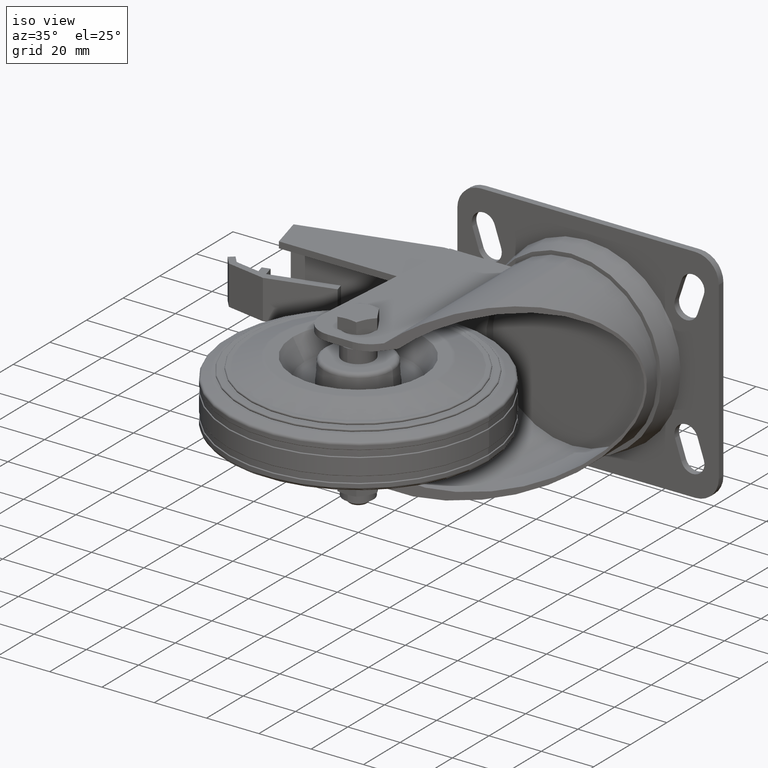
[diagram: clean part render]
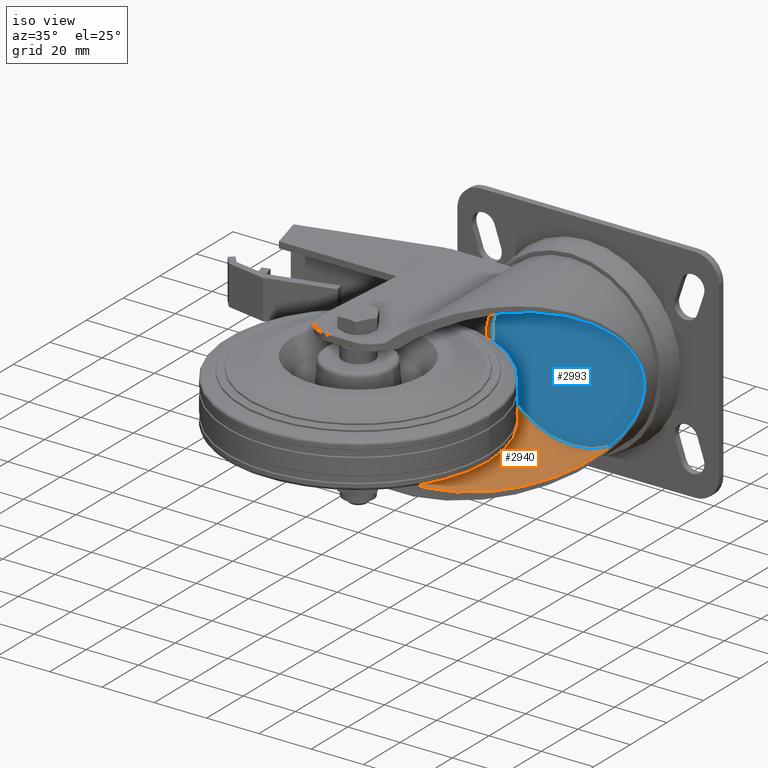
[diagram: same view with the hole feature highlighted: cylindrical wall and planar end face, labeled with their STEP entity ids]
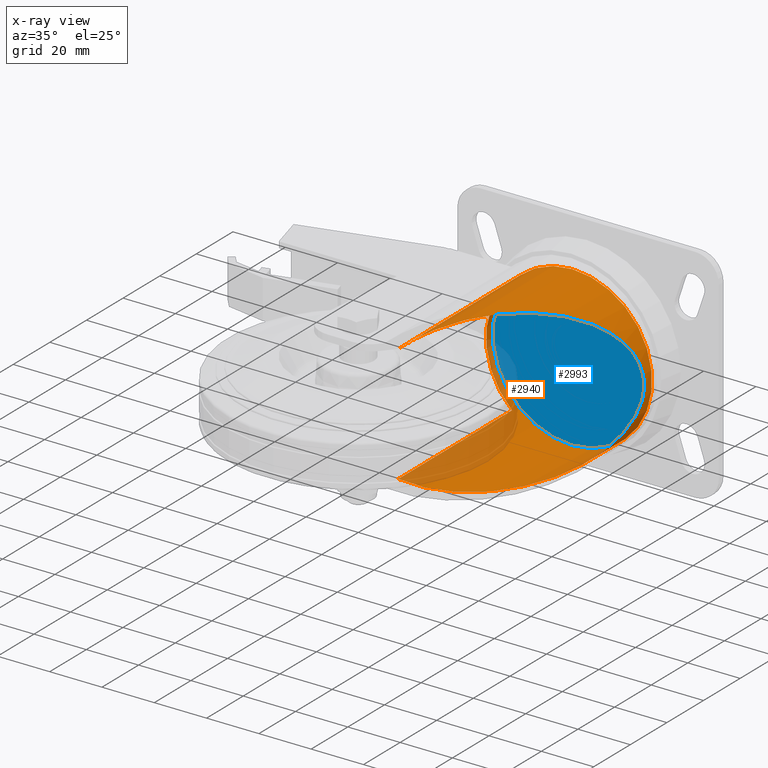
[diagram: x-ray of the same camera — body ghosted, the hole faces saturated]
A machine part, iso view. The highlighted faces form one hole feature of diameter 61 mm: the cylindrical wall (entity #2940, orange) and its adjacent planar end face (entity #2993, blue) — they share a circular edge in the B-rep.
The next image is the same camera in x-ray (body ghosted, the hole faces saturated) — the bore reads through the body.
Wall:
#50=ELLIPSE('',#3277,47.7101763165063,30.5);
#51=ELLIPSE('',#3278,47.7101763165063,30.5);
#285=LINE('',#4903,#479);
#286=LINE('',#4905,#480);
#287=LINE('',#4908,#481);
#479=VECTOR('',#3833,30.5);
#480=VECTOR('',#3834,1000.);
#481=VECTOR('',#3837,1000.);
#635=CYLINDRICAL_SURFACE('',#3289,30.5);
#721=FACE_OUTER_BOUND('',#915,.T.);
#915=EDGE_LOOP('',(#2251,#2252,#2253,#2254,#2255,#2256,#2257,#2258));
#1117=CIRCLE('',#3290,30.5);
#1118=CIRCLE('',#3291,30.5);
#1382=VERTEX_POINT('',#4868);
#1383=VERTEX_POINT('',#4870);
#1384=VERTEX_POINT('',#4872);
#1392=VERTEX_POINT('',#4901);
#1393=VERTEX_POINT('',#4904);
#1394=VERTEX_POINT('',#4906);
#1695=EDGE_CURVE('',#1382,#1383,#50,.F.);
#1696=EDGE_CURVE('',#1383,#1384,#51,.F.);
#1712=EDGE_CURVE('',#1392,#1392,#1117,.T.);
#1713=EDGE_CURVE('',#1392,#1383,#285,.T.);
#1714=EDGE_CURVE('',#1382,#1393,#286,.F.);
#1715=EDGE_CURVE('',#1393,#1394,#1118,.T.);
#1716=EDGE_CURVE('',#1394,#1384,#287,.T.);
#2251=ORIENTED_EDGE('',*,*,#1712,.F.);
#2252=ORIENTED_EDGE('',*,*,#1713,.T.);
#2253=ORIENTED_EDGE('',*,*,#1695,.F.);
#2254=ORIENTED_EDGE('',*,*,#1714,.T.);
#2255=ORIENTED_EDGE('',*,*,#1715,.T.);
#2256=ORIENTED_EDGE('',*,*,#1716,.T.);
#2257=ORIENTED_EDGE('',*,*,#1696,.F.);
#2258=ORIENTED_EDGE('',*,*,#1713,.F.);
#2940=ADVANCED_FACE('',(#721),#635,.F.);
#3277=AXIS2_PLACEMENT_3D('',#4871,#3796,#3797);
#3278=AXIS2_PLACEMENT_3D('',#4873,#3798,#3799);
#3289=AXIS2_PLACEMENT_3D('',#4900,#3829,#3830);
#3290=AXIS2_PLACEMENT_3D('',#4902,#3831,#3832);
#3291=AXIS2_PLACEMENT_3D('',#4907,#3835,#3836);
#3796=DIRECTION('center_axis',(0.768976859184235,-0.639276614650613,0.));
#3797=DIRECTION('ref_axis',(-0.639276614650613,-0.768976859184235,0.));
#3798=DIRECTION('center_axis',(0.768976859184235,-0.639276614650613,0.));
#3799=DIRECTION('ref_axis',(-0.639276614650613,-0.768976859184235,0.));
#3829=DIRECTION('center_axis',(0.,-1.,0.));
#3830=DIRECTION('ref_axis',(0.,0.,-1.));
#3831=DIRECTION('center_axis',(0.,-1.,0.));
#3832=DIRECTION('ref_axis',(0.,0.,-1.));
#3833=DIRECTION('',(0.,-1.,0.));
#3834=DIRECTION('',(0.,-1.,0.));
#3835=DIRECTION('center_axis',(0.,-1.,0.));
#3836=DIRECTION('ref_axis',(0.,0.,-1.));
#3837=DIRECTION('',(0.,-1.,0.));
#4868=CARTESIAN_POINT('',(16.408739718026,-1.55840223745891,22.5));
#4870=CARTESIAN_POINT('',(37.,23.2105354890234,30.5));
#4871=CARTESIAN_POINT('Origin',(37.,23.2105354890234,0.));
#4872=CARTESIAN_POINT('',(16.408739718026,-1.55840223745891,-22.5));
#4873=CARTESIAN_POINT('Origin',(37.,23.2105354890234,0.));
#4900=CARTESIAN_POINT('Origin',(37.,-10.,0.));
#4901=CARTESIAN_POINT('',(37.,64.,30.5));
#4902=CARTESIAN_POINT('Origin',(37.,64.,0.));
#4903=CARTESIAN_POINT('',(37.,-10.,30.5));
#4904=CARTESIAN_POINT('',(16.408739718026,60.5,22.5));
#4905=CARTESIAN_POINT('',(16.408739718026,-10.,22.5));
#4906=CARTESIAN_POINT('',(16.408739718026,60.5,-22.5));
#4907=CARTESIAN_POINT('Origin',(37.,60.5,0.));
#4908=CARTESIAN_POINT('',(16.408739718026,-10.,-22.5));
End face:
#199=PLANE('',#3406);
#774=FACE_OUTER_BOUND('',#985,.T.);
#985=EDGE_LOOP('',(#2522));
#1117=CIRCLE('',#3290,30.5);
#1392=VERTEX_POINT('',#4901);
#1712=EDGE_CURVE('',#1392,#1392,#1117,.T.);
#2522=ORIENTED_EDGE('',*,*,#1712,.T.);
#2993=ADVANCED_FACE('',(#774),#199,.T.);
#3290=AXIS2_PLACEMENT_3D('',#4902,#3831,#3832);
#3406=AXIS2_PLACEMENT_3D('',#5170,#4131,#4132);
#3831=DIRECTION('center_axis',(0.,-1.,0.));
#3832=DIRECTION('ref_axis',(0.,0.,-1.));
#4131=DIRECTION('center_axis',(0.,-1.,0.));
#4132=DIRECTION('ref_axis',(0.,0.,-1.));
#4901=CARTESIAN_POINT('',(37.,64.,30.5));
#4902=CARTESIAN_POINT('Origin',(37.,64.,0.));
#5170=CARTESIAN_POINT('Origin',(37.,64.,0.));